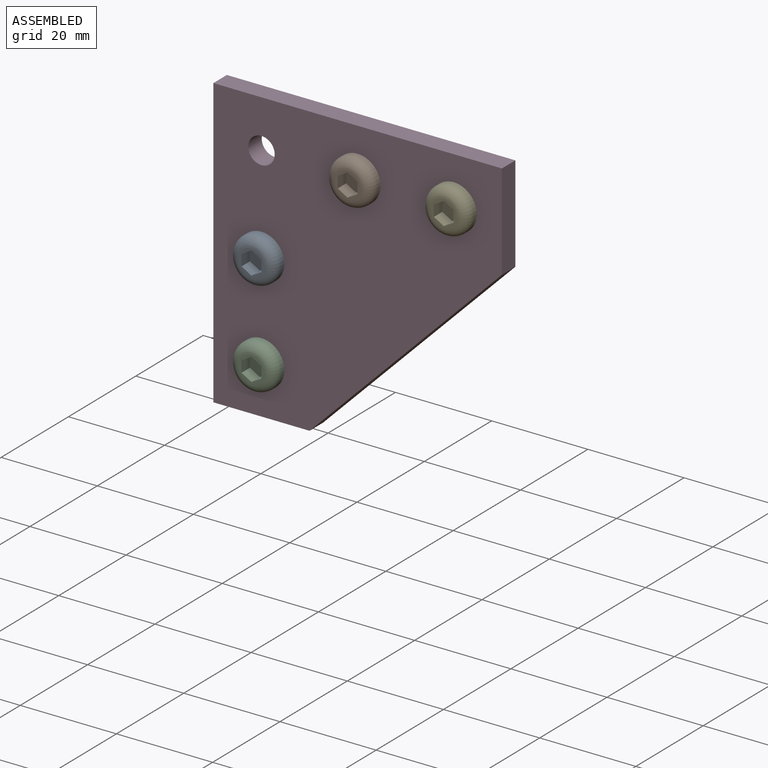
[diagram: assembled view]
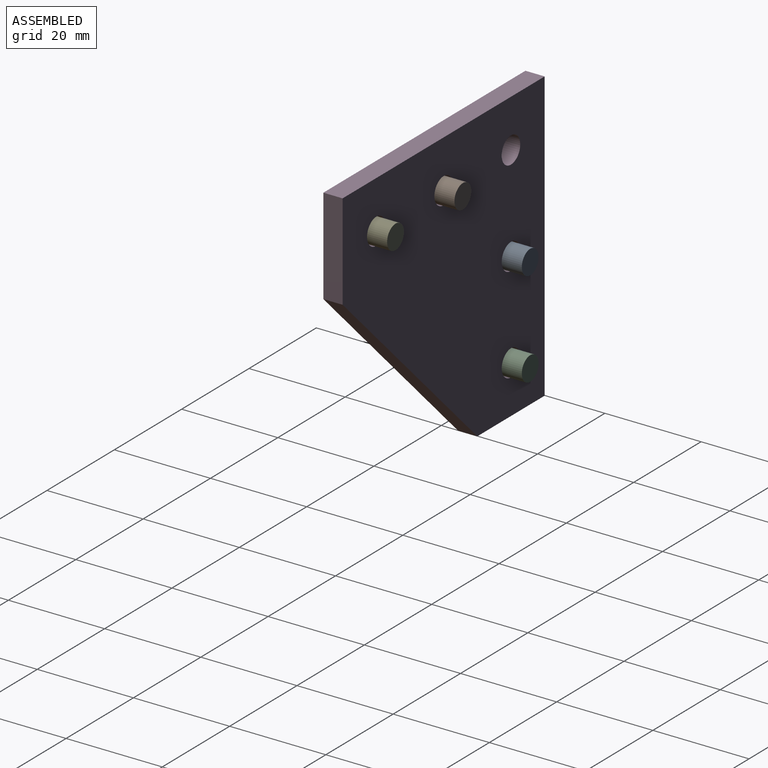
[diagram: assembled view, second angle]
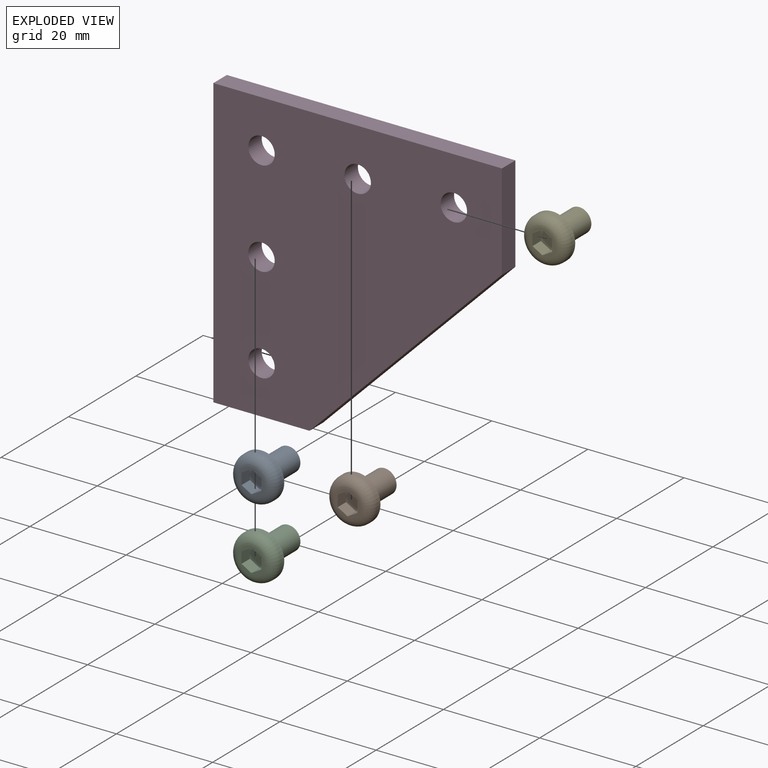
[diagram: exploded view]
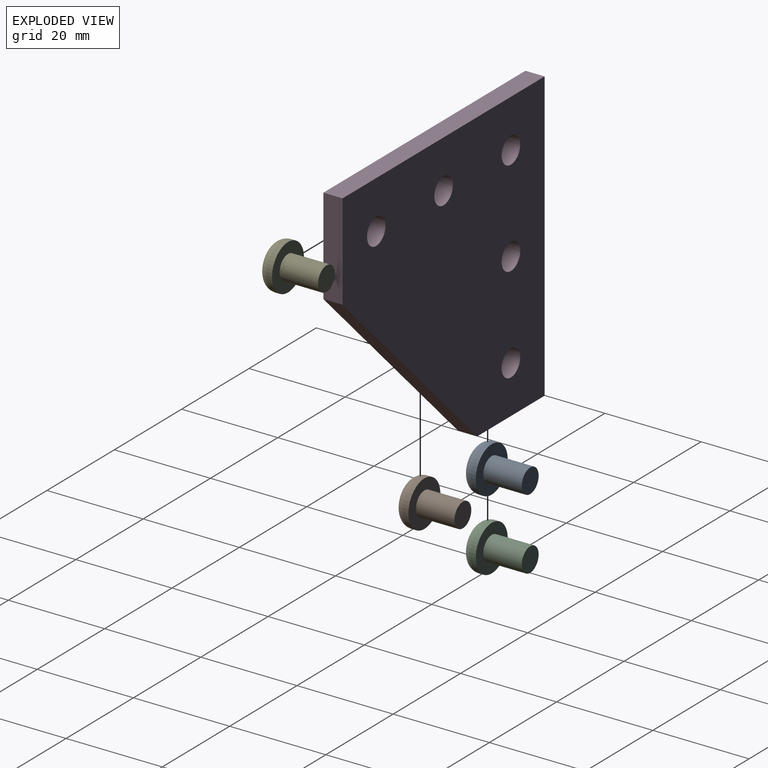
[diagram: exploded view, second angle]
ASSEMBLY  parts=5 mates=4
PART A: 13 faces, bbox 10.3x10.3x11 mm
  f0: plane 5.5x5.5mm, normal (0,0,1), area 9.2mm2, adj f3,f6,f7,f8,f9,f10,f11
  f1: cylinder r=4.75mm len=9.5mm, axis (0,0,-1), area 29.8mm2, adj f2,f3
  f2: plane 9.5x9.5mm, normal (0,0,-1), area 51.2mm2, adj f1,f4
  f3: torus R=2.75mm, axis (0,0,1), area 79.4mm2, adj f0,f1
  f4: cylinder r=2.5mm len=8mm, axis (0,0,1), area 125.7mm2, adj f2,f5
  f5: plane 5x5mm, normal (0,0,-1), area 19.6mm2, adj f4
  f6: plane 2.5x2.05mm, normal (-0.5,-0.87,0), area 5.9mm2, adj f0,f7,f11,f12
  f7: plane 2.5x2.05mm, normal (0.5,-0.87,0), area 5.9mm2, adj f0,f6,f8,f12
  f8: plane 2.5x2.36mm, normal (1,0,0), area 5.9mm2, adj f0,f7,f9,f12
  f9: plane 2.5x2.05mm, normal (0.5,0.87,0), area 5.9mm2, adj f0,f8,f10,f12
  f10: plane 2.5x2.05mm, normal (-0.5,0.87,0), area 5.9mm2, adj f0,f9,f11,f12
  f11: plane 2.5x2.36mm, normal (-1,0,0), area 5.9mm2, adj f0,f6,f10,f12
  f12: plane 4.73x4.1mm, normal (0,0,1), area 14.5mm2, adj f6,f7,f8,f9,f10,f11
PART B: same geometry as A
PART C: same geometry as A
PART D: 12 faces, bbox 60x4x60 mm
  f0: plane 40x40mm, normal (0.71,0,0.71), area 226.3mm2, adj f1,f9,f10,f11
  f1: plane 20x4mm, normal (0,0,1), area 80mm2, adj f0,f2,f10,f11
  f2: plane 60x4mm, normal (-1,0,0), area 240mm2, adj f1,f3,f10,f11
  f3: plane 60x4mm, normal (0,0,-1), area 240mm2, adj f2,f9,f10,f11
  f4: cylinder r=2.75mm len=5.5mm, axis (0,1,0), area 69.1mm2, adj f10,f11
  f5: cylinder r=2.75mm len=5.5mm, axis (0,1,0), area 69.1mm2, adj f10,f11
  f6: cylinder r=2.75mm len=5.5mm, axis (0,1,0), area 69.1mm2, adj f10,f11
  f7: cylinder r=2.75mm len=5.5mm, axis (0,1,0), area 69.1mm2, adj f10,f11
  f8: cylinder r=2.75mm len=5.5mm, axis (0,1,0), area 69.1mm2, adj f10,f11
  f9: plane 20x4mm, normal (1,0,0), area 80mm2, adj f0,f3,f10,f11
  f10: plane 60x60mm, normal (0,-1,0), area 2681.2mm2, adj f0,f1,f2,f3,f4,f5,f6,f7
  f11: plane 60x60mm, normal (0,1,0), area 2681.2mm2, adj f0,f1,f2,f3,f4,f5,f6,f7
PART E: same geometry as A
PLACE A rot(axis=(1,0,0),90deg) t=(-13.82,2.82,12.46)mm
PLACE B rot(axis=(1,0,0),90deg) t=(6.18,2.82,32.46)mm
PLACE C rot(axis=(1,0,0),90deg) t=(-13.82,2.82,-7.54)mm
PLACE D rot(axis=(0,1,0),90deg) t=(1.98,6.82,6.91)mm
PLACE E rot(axis=(1,0,0),90deg) t=(26.18,2.82,32.46)mm
MATE fastened B.f1 <-> D.f5  axis (0,-1,0) through (6.18,2.82,32.46)mm
MATE fastened D.f4 <-> E.f1  axis (0,-1,0) through (26.18,2.82,32.46)mm
MATE fastened D.f7 <-> A.f1  axis (0,-1,0) through (-13.82,2.82,12.46)mm
MATE fastened D.f8 <-> C.f1  axis (0,-1,0) through (-13.82,2.82,-7.54)mm
